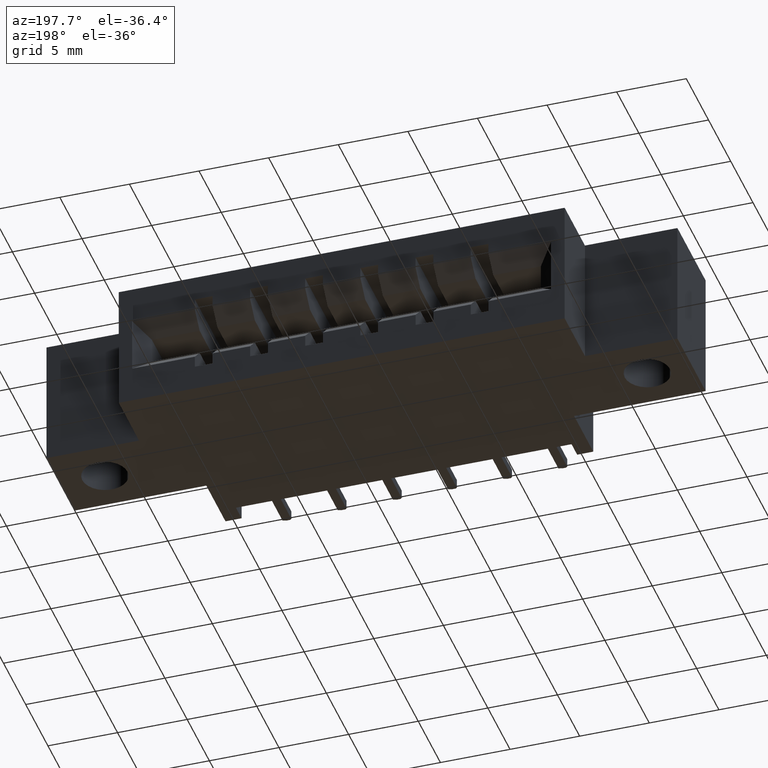
[diagram: clean part render]
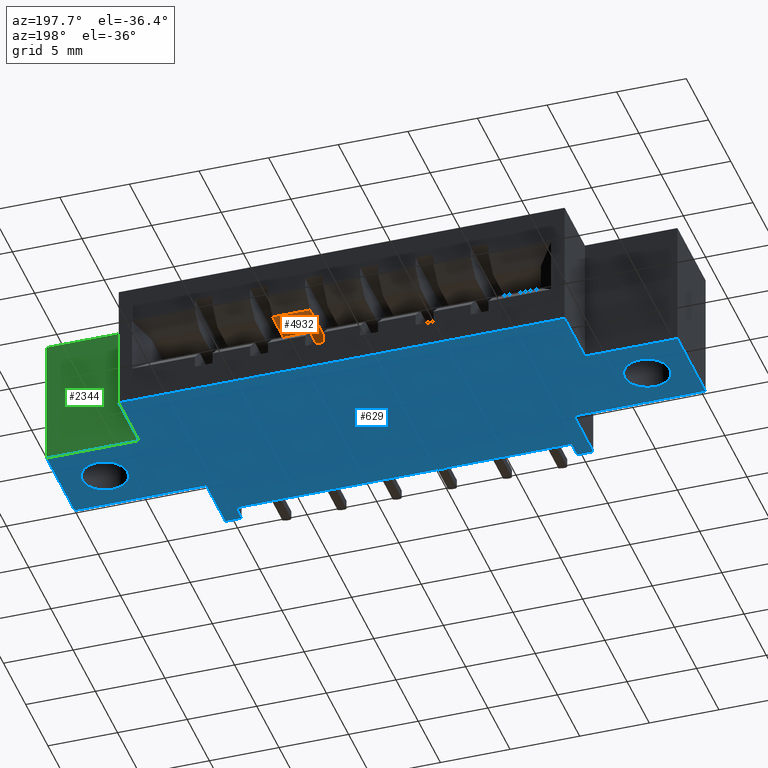
[diagram: same view with three faces highlighted in distinct colors, each labeled with its STEP entity id]
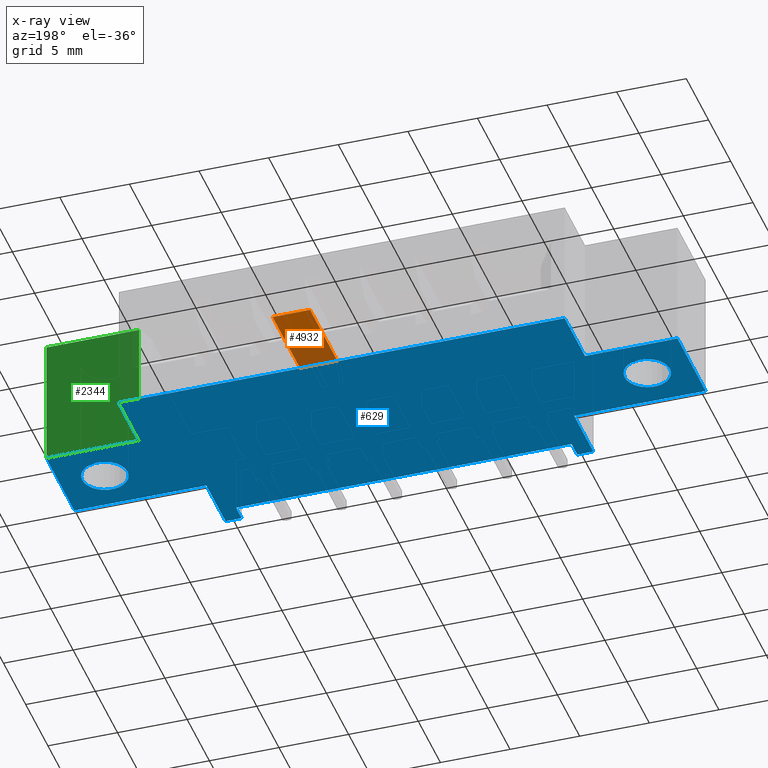
[diagram: x-ray of the same camera — body ghosted, the three highlighted faces saturated]
A machine part, auxiliary view with three faces highlighted in distinct colors.
The next image is the same camera in x-ray (body ghosted, the three faces saturated) — at least one of them is partly hidden behind the body in this view.
Their STEP definitions:

[orange] entity #4932 — the highlighted planar face has unit normal (-0, 0, 1).
#10 = EDGE_CURVE ( 'NONE', #1405, #4229, #4120, .T. ) ;
#189 = VERTEX_POINT ( 'NONE', #2765 ) ;
#1190 = ORIENTED_EDGE ( 'NONE', *, *, #4492, .T. ) ;
#1372 = PLANE ( 'NONE',  #5426 ) ;
#1405 = VERTEX_POINT ( 'NONE', #4775 ) ;
#1802 = DIRECTION ( 'NONE',  ( 1.000000000000000000, 0.0000000000000000000, 1.241749088029209900E-016 ) ) ;
#2114 = VECTOR ( 'NONE', #1802, 39.37007874015748100 ) ;
#2160 = CARTESIAN_POINT ( 'NONE',  ( 0.9949999999999998800, 0.5999999999999996400, -0.1480000000000002700 ) ) ;
#2161 = DIRECTION ( 'NONE',  ( -0.0000000000000000000, 1.000000000000000000, -8.801056680619408300E-016 ) ) ;
#2336 = VECTOR ( 'NONE', #2161, 39.37007874015748100 ) ;
#2396 = LINE ( 'NONE', #2685, #7357 ) ;
#2685 = CARTESIAN_POINT ( 'NONE',  ( 0.3419999999999999200, 0.5579999999999999400, -0.1480000000000003000 ) ) ;
#2743 = DIRECTION ( 'NONE',  ( 1.000000000000000000, 0.0000000000000000000, 1.241749088029209900E-016 ) ) ;
#2765 = CARTESIAN_POINT ( 'NONE',  ( 1.101000000000000000, 0.2119999999999998300, -0.1479999999999999400 ) ) ;
#2936 = VERTEX_POINT ( 'NONE', #3946 ) ;
#3007 = DIRECTION ( 'NONE',  ( -0.0000000000000000000, 1.000000000000000000, -8.801056680619408300E-016 ) ) ;
#3306 = CARTESIAN_POINT ( 'NONE',  ( 0.9949999999999998800, 0.5579999999999999400, -0.1480000000000002400 ) ) ;
#3946 = CARTESIAN_POINT ( 'NONE',  ( 1.101000000000000000, 0.5579999999999999400, -0.1480000000000002400 ) ) ;
#4120 = LINE ( 'NONE', #2160, #2336 ) ;
#4173 = FACE_OUTER_BOUND ( 'NONE', #7962, .T. ) ;
#4229 = VERTEX_POINT ( 'NONE', #3306 ) ;
#4492 = EDGE_CURVE ( 'NONE', #4229, #2936, #2396, .T. ) ;
#4549 = DIRECTION ( 'NONE',  ( 1.000000000000000000, 0.0000000000000000000, 1.241749088029209900E-016 ) ) ;
#4775 = CARTESIAN_POINT ( 'NONE',  ( 0.9949999999999998800, 0.2119999999999999400, -0.1480000000000002100 ) ) ;
#4932 = ADVANCED_FACE ( 'NONE', ( #4173 ), #1372, .F. ) ;
#5125 = CARTESIAN_POINT ( 'NONE',  ( 0.3419999999999999200, 0.2119999999999999400, -0.1480000000000003000 ) ) ;
#5402 = ORIENTED_EDGE ( 'NONE', *, *, #10, .T. ) ;
#5426 = AXIS2_PLACEMENT_3D ( 'NONE', #6151, #5999, #2743 ) ;
#5598 = ORIENTED_EDGE ( 'NONE', *, *, #8274, .F. ) ;
#5999 = DIRECTION ( 'NONE',  ( -1.241749088029209900E-016, 0.0000000000000000000, 1.000000000000000000 ) ) ;
#6076 = VECTOR ( 'NONE', #3007, 39.37007874015748100 ) ;
#6151 = CARTESIAN_POINT ( 'NONE',  ( 0.3419999999999999200, 0.2119999999999999400, -0.1480000000000003000 ) ) ;
#6618 = EDGE_CURVE ( 'NONE', #189, #2936, #7727, .T. ) ;
#7170 = CARTESIAN_POINT ( 'NONE',  ( 1.101000000000000000, 0.5999999999999996400, -0.1480000000000002700 ) ) ;
#7277 = LINE ( 'NONE', #5125, #2114 ) ;
#7357 = VECTOR ( 'NONE', #4549, 39.37007874015748100 ) ;
#7727 = LINE ( 'NONE', #7170, #6076 ) ;
#7734 = ORIENTED_EDGE ( 'NONE', *, *, #6618, .F. ) ;
#7962 = EDGE_LOOP ( 'NONE', ( #1190, #7734, #5598, #5402 ) ) ;
#8274 = EDGE_CURVE ( 'NONE', #1405, #189, #7277, .T. ) ;

[blue] entity #629 — the highlighted planar face has unit normal (0, 0, 1).
#7 = VECTOR ( 'NONE', #6171, 39.37007874015748100 ) ;
#30 = VECTOR ( 'NONE', #8387, 39.37007874015748100 ) ;
#34 = EDGE_CURVE ( 'NONE', #6651, #4865, #5876, .T. ) ;
#83 = VERTEX_POINT ( 'NONE', #343 ) ;
#94 = VERTEX_POINT ( 'NONE', #282 ) ;
#261 = EDGE_CURVE ( 'NONE', #3357, #2248, #4442, .T. ) ;
#273 = EDGE_CURVE ( 'NONE', #83, #5969, #4022, .T. ) ;
#282 = CARTESIAN_POINT ( 'NONE',  ( 0.4174999999999997000, 0.0000000000000000000, -0.3700000000000000000 ) ) ;
#343 = CARTESIAN_POINT ( 'NONE',  ( 0.1889999999999998100, 0.2949999999999999800, -0.3700000000000001600 ) ) ;
#389 = CARTESIAN_POINT ( 'NONE',  ( 1.659000000000000000, 0.2950000000000001500, -0.3700000000000001600 ) ) ;
#392 = DIRECTION ( 'NONE',  ( 1.000000000000000000, 0.0000000000000000000, -0.0000000000000000000 ) ) ;
#484 = VERTEX_POINT ( 'NONE', #8064 ) ;
#496 = CARTESIAN_POINT ( 'NONE',  ( 1.723000000000000800, 0.2950000000000001500, -0.3700000000000001600 ) ) ;
#530 = DIRECTION ( 'NONE',  ( -1.000000000000000000, -0.0000000000000000000, -0.0000000000000000000 ) ) ;
#559 = LINE ( 'NONE', #925, #7316 ) ;
#575 = DIRECTION ( 'NONE',  ( 1.000000000000000000, 0.0000000000000000000, 0.0000000000000000000 ) ) ;
#629 = ADVANCED_FACE ( 'NONE', ( #1700, #3494, #1912 ), #3615, .F. ) ;
#647 = VECTOR ( 'NONE', #6656, 39.37007874015748100 ) ;
#696 = EDGE_CURVE ( 'NONE', #7901, #4925, #1280, .T. ) ;
#755 = ORIENTED_EDGE ( 'NONE', *, *, #7593, .F. ) ;
#768 = EDGE_CURVE ( 'NONE', #3357, #3532, #4013, .T. ) ;
#858 = VECTOR ( 'NONE', #4612, 39.37007874015748100 ) ;
#925 = CARTESIAN_POINT ( 'NONE',  ( 1.522500000000001100, 0.4199999999999999800, -0.3700000000000001600 ) ) ;
#966 = CARTESIAN_POINT ( 'NONE',  ( -1.365923996832131600E-015, 0.1699999999999999800, -0.3699999999999960500 ) ) ;
#1001 = CARTESIAN_POINT ( 'NONE',  ( 1.366499999999999800, 0.05000000000000000300, -0.3700000000000000000 ) ) ;
#1051 = VERTEX_POINT ( 'NONE', #966 ) ;
#1064 = CARTESIAN_POINT ( 'NONE',  ( 0.0000000000000000000, 0.4199999999999999800, -0.3700000000000000000 ) ) ;
#1086 = EDGE_CURVE ( 'NONE', #5883, #2248, #1903, .T. ) ;
#1125 = CARTESIAN_POINT ( 'NONE',  ( 0.0000000000000000000, 0.0000000000000000000, -0.3700000000000000000 ) ) ;
#1161 = ORIENTED_EDGE ( 'NONE', *, *, #273, .T. ) ;
#1168 = ORIENTED_EDGE ( 'NONE', *, *, #5406, .T. ) ;
#1226 = EDGE_CURVE ( 'NONE', #1632, #2581, #2216, .T. ) ;
#1244 = ORIENTED_EDGE ( 'NONE', *, *, #3929, .F. ) ;
#1280 = LINE ( 'NONE', #6353, #6327 ) ;
#1289 = VERTEX_POINT ( 'NONE', #5135 ) ;
#1359 = VECTOR ( 'NONE', #7548, 39.37007874015748100 ) ;
#1384 = EDGE_CURVE ( 'NONE', #3057, #4925, #2750, .T. ) ;
#1415 = ORIENTED_EDGE ( 'NONE', *, *, #3528, .F. ) ;
#1446 = VERTEX_POINT ( 'NONE', #4594 ) ;
#1447 = ORIENTED_EDGE ( 'NONE', *, *, #7919, .T. ) ;
#1457 = ORIENTED_EDGE ( 'NONE', *, *, #1226, .T. ) ;
#1568 = VERTEX_POINT ( 'NONE', #1862 ) ;
#1623 = ORIENTED_EDGE ( 'NONE', *, *, #696, .T. ) ;
#1632 = VERTEX_POINT ( 'NONE', #496 ) ;
#1670 = LINE ( 'NONE', #5347, #7 ) ;
#1691 = ORIENTED_EDGE ( 'NONE', *, *, #3037, .F. ) ;
#1700 = FACE_BOUND ( 'NONE', #4596, .T. ) ;
#1713 = CARTESIAN_POINT ( 'NONE',  ( -1.365923996832131600E-015, 0.1699999999999999800, -0.3699999999999960500 ) ) ;
#1755 = DIRECTION ( 'NONE',  ( 1.000000000000000000, -0.0000000000000000000, -0.0000000000000000000 ) ) ;
#1793 = AXIS2_PLACEMENT_3D ( 'NONE', #7808, #7815, #7886 ) ;
#1795 = ORIENTED_EDGE ( 'NONE', *, *, #2641, .T. ) ;
#1851 = DIRECTION ( 'NONE',  ( 1.000000000000000000, 0.0000000000000000000, -4.589798376452054700E-015 ) ) ;
#1862 = CARTESIAN_POINT ( 'NONE',  ( 1.412000000000000100, 0.0000000000000000000, -0.3700000000000000000 ) ) ;
#1903 = LINE ( 'NONE', #5259, #5036 ) ;
#1912 = FACE_OUTER_BOUND ( 'NONE', #2343, .T. ) ;
#2072 = DIRECTION ( 'NONE',  ( -1.000000000000000000, -0.0000000000000000000, -0.0000000000000000000 ) ) ;
#2216 = CIRCLE ( 'NONE', #1793, 0.06400000000000073700 ) ;
#2230 = CARTESIAN_POINT ( 'NONE',  ( 0.4174999999999997000, 0.05000000000000000300, -0.3700000000000000000 ) ) ;
#2248 = VERTEX_POINT ( 'NONE', #2640 ) ;
#2263 = AXIS2_PLACEMENT_3D ( 'NONE', #2522, #2408, #2398 ) ;
#2271 = DIRECTION ( 'NONE',  ( -0.0000000000000000000, -1.000000000000000000, -0.0000000000000000000 ) ) ;
#2291 = EDGE_CURVE ( 'NONE', #7901, #1446, #7092, .T. ) ;
#2343 = EDGE_LOOP ( 'NONE', ( #1447, #1244, #1691, #755, #3100, #7025, #2572, #4877, #3226, #1623, #5484, #6563, #2692, #1415, #2466, #1795 ) ) ;
#2397 = AXIS2_PLACEMENT_3D ( 'NONE', #389, #3368, #5591 ) ;
#2398 = DIRECTION ( 'NONE',  ( 1.000000000000000000, 0.0000000000000000000, 0.0000000000000000000 ) ) ;
#2408 = DIRECTION ( 'NONE',  ( 0.0000000000000000000, 0.0000000000000000000, 1.000000000000000000 ) ) ;
#2463 = CIRCLE ( 'NONE', #2263, 0.06400000000000000100 ) ;
#2466 = ORIENTED_EDGE ( 'NONE', *, *, #34, .F. ) ;
#2481 = VERTEX_POINT ( 'NONE', #7894 ) ;
#2522 = CARTESIAN_POINT ( 'NONE',  ( 0.1249999999999998100, 0.2949999999999999800, -0.3700000000000001600 ) ) ;
#2572 = ORIENTED_EDGE ( 'NONE', *, *, #1086, .F. ) ;
#2581 = VERTEX_POINT ( 'NONE', #6996 ) ;
#2639 = CARTESIAN_POINT ( 'NONE',  ( 1.784000000000000500, 0.4199999999999999800, -0.3700000000000000000 ) ) ;
#2640 = CARTESIAN_POINT ( 'NONE',  ( 0.2615000000000000700, 0.5999999999999999800, -0.3700000000000000000 ) ) ;
#2641 = EDGE_CURVE ( 'NONE', #6651, #94, #6213, .T. ) ;
#2688 = DIRECTION ( 'NONE',  ( 0.0000000000000000000, 0.0000000000000000000, 1.000000000000000000 ) ) ;
#2692 = ORIENTED_EDGE ( 'NONE', *, *, #3815, .T. ) ;
#2741 = LINE ( 'NONE', #3597, #7480 ) ;
#2750 = LINE ( 'NONE', #7977, #4725 ) ;
#2774 = DIRECTION ( 'NONE',  ( -0.0000000000000000000, -1.000000000000000000, -0.0000000000000000000 ) ) ;
#3037 = EDGE_CURVE ( 'NONE', #1051, #1289, #5038, .T. ) ;
#3047 = AXIS2_PLACEMENT_3D ( 'NONE', #6412, #2688, #392 ) ;
#3057 = VERTEX_POINT ( 'NONE', #6002 ) ;
#3100 = ORIENTED_EDGE ( 'NONE', *, *, #768, .F. ) ;
#3226 = ORIENTED_EDGE ( 'NONE', *, *, #2291, .F. ) ;
#3249 = CARTESIAN_POINT ( 'NONE',  ( 0.4174999999999997000, 0.05000000000000000300, -0.3700000000000000000 ) ) ;
#3313 = CARTESIAN_POINT ( 'NONE',  ( 1.412000000000000100, 0.1699999999999999800, -0.3700000000000000000 ) ) ;
#3357 = VERTEX_POINT ( 'NONE', #4309 ) ;
#3368 = DIRECTION ( 'NONE',  ( 0.0000000000000000000, 0.0000000000000000000, 1.000000000000000000 ) ) ;
#3471 = CARTESIAN_POINT ( 'NONE',  ( 1.366499999999999800, 0.05000000000000000300, -0.3700000000000000000 ) ) ;
#3487 = VECTOR ( 'NONE', #1851, 39.37007874015748100 ) ;
#3494 = FACE_BOUND ( 'NONE', #7714, .T. ) ;
#3528 = EDGE_CURVE ( 'NONE', #4865, #2481, #4622, .T. ) ;
#3532 = VERTEX_POINT ( 'NONE', #7526 ) ;
#3597 = CARTESIAN_POINT ( 'NONE',  ( 0.0000000000000000000, 0.0000000000000000000, -0.3700000000000000000 ) ) ;
#3615 = PLANE ( 'NONE',  #3047 ) ;
#3815 = EDGE_CURVE ( 'NONE', #1568, #2481, #2741, .T. ) ;
#3871 = ORIENTED_EDGE ( 'NONE', *, *, #6871, .T. ) ;
#3924 = VECTOR ( 'NONE', #575, 39.37007874015748100 ) ;
#3929 = EDGE_CURVE ( 'NONE', #1289, #484, #1670, .T. ) ;
#4013 = LINE ( 'NONE', #1064, #647 ) ;
#4022 = CIRCLE ( 'NONE', #8477, 0.06400000000000000100 ) ;
#4105 = DIRECTION ( 'NONE',  ( -0.0000000000000000000, -1.000000000000000000, -0.0000000000000000000 ) ) ;
#4113 = DIRECTION ( 'NONE',  ( -0.0000000000000000000, 1.000000000000000000, -0.0000000000000000000 ) ) ;
#4268 = LINE ( 'NONE', #3313, #7832 ) ;
#4309 = CARTESIAN_POINT ( 'NONE',  ( 0.2615000000000001200, 0.4199999999999999800, -0.3700000000000000000 ) ) ;
#4314 = CARTESIAN_POINT ( 'NONE',  ( 0.2615000000000000700, 0.4199999999999999800, -0.3700000000000000000 ) ) ;
#4442 = LINE ( 'NONE', #4314, #858 ) ;
#4499 = CARTESIAN_POINT ( 'NONE',  ( 0.0000000000000000000, 0.5999999999999999800, -0.3700000000000000000 ) ) ;
#4594 = CARTESIAN_POINT ( 'NONE',  ( 1.522500000000001100, 0.4199999999999999800, -0.3700000000000001600 ) ) ;
#4596 = EDGE_LOOP ( 'NONE', ( #1457, #1168 ) ) ;
#4612 = DIRECTION ( 'NONE',  ( -0.0000000000000000000, 1.000000000000000000, -0.0000000000000000000 ) ) ;
#4622 = LINE ( 'NONE', #1001, #6309 ) ;
#4725 = VECTOR ( 'NONE', #1755, 39.37007874015748100 ) ;
#4865 = VERTEX_POINT ( 'NONE', #3471 ) ;
#4877 = ORIENTED_EDGE ( 'NONE', *, *, #6668, .F. ) ;
#4925 = VERTEX_POINT ( 'NONE', #8485 ) ;
#5036 = VECTOR ( 'NONE', #530, 39.37007874015748100 ) ;
#5038 = LINE ( 'NONE', #1713, #3487 ) ;
#5053 = LINE ( 'NONE', #4499, #8169 ) ;
#5106 = DIRECTION ( 'NONE',  ( 1.000000000000000000, 0.0000000000000000000, 0.0000000000000000000 ) ) ;
#5135 = CARTESIAN_POINT ( 'NONE',  ( 0.3719999999999986700, 0.1699999999999999800, -0.3699999999999977800 ) ) ;
#5259 = CARTESIAN_POINT ( 'NONE',  ( 0.0000000000000000000, 0.5999999999999999800, -0.3700000000000000000 ) ) ;
#5261 = VECTOR ( 'NONE', #5896, 39.37007874015748100 ) ;
#5347 = CARTESIAN_POINT ( 'NONE',  ( 0.3719999999999986700, 0.1699999999999999800, -0.3699999999999977800 ) ) ;
#5406 = EDGE_CURVE ( 'NONE', #2581, #1632, #7150, .T. ) ;
#5484 = ORIENTED_EDGE ( 'NONE', *, *, #1384, .F. ) ;
#5591 = DIRECTION ( 'NONE',  ( -1.000000000000000000, 0.0000000000000000000, 0.0000000000000000000 ) ) ;
#5634 = DIRECTION ( 'NONE',  ( 0.0000000000000000000, 0.0000000000000000000, 1.000000000000000000 ) ) ;
#5851 = CARTESIAN_POINT ( 'NONE',  ( 0.1249999999999998100, 0.2949999999999999800, -0.3700000000000001600 ) ) ;
#5876 = LINE ( 'NONE', #2230, #3924 ) ;
#5883 = VERTEX_POINT ( 'NONE', #6857 ) ;
#5896 = DIRECTION ( 'NONE',  ( -1.000000000000000000, -0.0000000000000000000, -0.0000000000000000000 ) ) ;
#5969 = VERTEX_POINT ( 'NONE', #6729 ) ;
#6002 = CARTESIAN_POINT ( 'NONE',  ( 1.412000000000000100, 0.1699999999999999800, -0.3700000000000000000 ) ) ;
#6006 = EDGE_CURVE ( 'NONE', #3057, #1568, #4268, .T. ) ;
#6171 = DIRECTION ( 'NONE',  ( -0.0000000000000000000, -1.000000000000000000, -0.0000000000000000000 ) ) ;
#6213 = LINE ( 'NONE', #7511, #1359 ) ;
#6309 = VECTOR ( 'NONE', #2774, 39.37007874015748100 ) ;
#6327 = VECTOR ( 'NONE', #7133, 39.37007874015748100 ) ;
#6353 = CARTESIAN_POINT ( 'NONE',  ( 1.784000000000000500, 0.5999999999999999800, -0.3700000000000000000 ) ) ;
#6412 = CARTESIAN_POINT ( 'NONE',  ( 0.0000000000000000000, 0.5999999999999999800, -0.3700000000000000000 ) ) ;
#6563 = ORIENTED_EDGE ( 'NONE', *, *, #6006, .T. ) ;
#6651 = VERTEX_POINT ( 'NONE', #3249 ) ;
#6656 = DIRECTION ( 'NONE',  ( -1.000000000000000000, -0.0000000000000000000, -0.0000000000000000000 ) ) ;
#6668 = EDGE_CURVE ( 'NONE', #1446, #5883, #559, .T. ) ;
#6729 = CARTESIAN_POINT ( 'NONE',  ( 0.06099999999999979700, 0.2949999999999999800, -0.3700000000000001600 ) ) ;
#6857 = CARTESIAN_POINT ( 'NONE',  ( 1.522500000000001100, 0.5999999999999999800, -0.3700000000000001600 ) ) ;
#6871 = EDGE_CURVE ( 'NONE', #5969, #83, #2463, .T. ) ;
#6903 = LINE ( 'NONE', #1125, #5261 ) ;
#6996 = CARTESIAN_POINT ( 'NONE',  ( 1.594999999999999300, 0.2950000000000001500, -0.3700000000000001600 ) ) ;
#7025 = ORIENTED_EDGE ( 'NONE', *, *, #261, .T. ) ;
#7092 = LINE ( 'NONE', #2639, #30 ) ;
#7133 = DIRECTION ( 'NONE',  ( -0.0000000000000000000, -1.000000000000000000, -0.0000000000000000000 ) ) ;
#7150 = CIRCLE ( 'NONE', #2397, 0.06400000000000073700 ) ;
#7316 = VECTOR ( 'NONE', #4113, 39.37007874015748100 ) ;
#7480 = VECTOR ( 'NONE', #2072, 39.37007874015748100 ) ;
#7511 = CARTESIAN_POINT ( 'NONE',  ( 0.4174999999999997000, 0.05000000000000000300, -0.3700000000000000000 ) ) ;
#7526 = CARTESIAN_POINT ( 'NONE',  ( 0.0000000000000000000, 0.4199999999999999800, -0.3700000000000000000 ) ) ;
#7548 = DIRECTION ( 'NONE',  ( -0.0000000000000000000, -1.000000000000000000, -0.0000000000000000000 ) ) ;
#7593 = EDGE_CURVE ( 'NONE', #3532, #1051, #5053, .T. ) ;
#7714 = EDGE_LOOP ( 'NONE', ( #1161, #3871 ) ) ;
#7808 = CARTESIAN_POINT ( 'NONE',  ( 1.659000000000000000, 0.2950000000000001500, -0.3700000000000001600 ) ) ;
#7815 = DIRECTION ( 'NONE',  ( 0.0000000000000000000, 0.0000000000000000000, 1.000000000000000000 ) ) ;
#7832 = VECTOR ( 'NONE', #4105, 39.37007874015748100 ) ;
#7834 = CARTESIAN_POINT ( 'NONE',  ( 1.784000000000000500, 0.4200000000000000400, -0.3700000000000000000 ) ) ;
#7886 = DIRECTION ( 'NONE',  ( -1.000000000000000000, 0.0000000000000000000, 0.0000000000000000000 ) ) ;
#7894 = CARTESIAN_POINT ( 'NONE',  ( 1.366499999999999800, 0.0000000000000000000, -0.3700000000000000000 ) ) ;
#7901 = VERTEX_POINT ( 'NONE', #7834 ) ;
#7919 = EDGE_CURVE ( 'NONE', #94, #484, #6903, .T. ) ;
#7977 = CARTESIAN_POINT ( 'NONE',  ( 1.784000000000000300, 0.1699999999999999800, -0.3700000000000000000 ) ) ;
#8064 = CARTESIAN_POINT ( 'NONE',  ( 0.3719999999999993300, 0.0000000000000000000, -0.3700000000000000000 ) ) ;
#8169 = VECTOR ( 'NONE', #2271, 39.37007874015748100 ) ;
#8387 = DIRECTION ( 'NONE',  ( -1.000000000000000000, 0.0000000000000000000, -5.223418725935506000E-016 ) ) ;
#8477 = AXIS2_PLACEMENT_3D ( 'NONE', #5851, #5634, #5106 ) ;
#8485 = CARTESIAN_POINT ( 'NONE',  ( 1.784000000000000300, 0.1699999999999999800, -0.3700000000000000000 ) ) ;

[green] entity #2344 — the highlighted planar face has unit normal (0, 1, 0).
#30 = VECTOR ( 'NONE', #8387, 39.37007874015748100 ) ;
#965 = DIRECTION ( 'NONE',  ( 0.0000000000000000000, 0.0000000000000000000, 1.000000000000000000 ) ) ;
#1174 = VERTEX_POINT ( 'NONE', #7412 ) ;
#1446 = VERTEX_POINT ( 'NONE', #4594 ) ;
#2291 = EDGE_CURVE ( 'NONE', #7901, #1446, #7092, .T. ) ;
#2344 = ADVANCED_FACE ( 'NONE', ( #8149 ), #5477, .T. ) ;
#2560 = VECTOR ( 'NONE', #7622, 39.37007874015748100 ) ;
#2639 = CARTESIAN_POINT ( 'NONE',  ( 1.784000000000000500, 0.4199999999999999800, -0.3700000000000000000 ) ) ;
#2716 = DIRECTION ( 'NONE',  ( -0.0000000000000000000, -0.0000000000000000000, -1.000000000000000000 ) ) ;
#2825 = CARTESIAN_POINT ( 'NONE',  ( 1.784000000000000500, 0.4199999999999999800, -0.3700000000000000000 ) ) ;
#2984 = LINE ( 'NONE', #8324, #2560 ) ;
#3174 = LINE ( 'NONE', #5632, #6419 ) ;
#3253 = LINE ( 'NONE', #2825, #8116 ) ;
#3281 = EDGE_CURVE ( 'NONE', #1446, #1174, #3174, .T. ) ;
#3745 = EDGE_LOOP ( 'NONE', ( #3925, #5810, #6833, #4069 ) ) ;
#3872 = DIRECTION ( 'NONE',  ( 0.0000000000000000000, 1.000000000000000000, -0.0000000000000000000 ) ) ;
#3925 = ORIENTED_EDGE ( 'NONE', *, *, #2291, .T. ) ;
#4069 = ORIENTED_EDGE ( 'NONE', *, *, #4818, .T. ) ;
#4594 = CARTESIAN_POINT ( 'NONE',  ( 1.522500000000001100, 0.4199999999999999800, -0.3700000000000001600 ) ) ;
#4818 = EDGE_CURVE ( 'NONE', #6346, #7901, #3253, .T. ) ;
#5477 = PLANE ( 'NONE',  #6231 ) ;
#5632 = CARTESIAN_POINT ( 'NONE',  ( 1.522500000000001100, 0.4199999999999999800, -0.3700000000000001600 ) ) ;
#5810 = ORIENTED_EDGE ( 'NONE', *, *, #3281, .T. ) ;
#6066 = CARTESIAN_POINT ( 'NONE',  ( 1.522500000000001100, 0.4199999999999999800, -0.3700000000000001600 ) ) ;
#6231 = AXIS2_PLACEMENT_3D ( 'NONE', #6066, #3872, #8379 ) ;
#6346 = VERTEX_POINT ( 'NONE', #7708 ) ;
#6419 = VECTOR ( 'NONE', #965, 39.37007874015748100 ) ;
#6833 = ORIENTED_EDGE ( 'NONE', *, *, #7472, .T. ) ;
#7092 = LINE ( 'NONE', #2639, #30 ) ;
#7412 = CARTESIAN_POINT ( 'NONE',  ( 1.522500000000001100, 0.4199999999999999800, -1.704402182713329600E-016 ) ) ;
#7472 = EDGE_CURVE ( 'NONE', #1174, #6346, #2984, .T. ) ;
#7622 = DIRECTION ( 'NONE',  ( 1.000000000000000000, -0.0000000000000000000, 6.517790373664756200E-016 ) ) ;
#7708 = CARTESIAN_POINT ( 'NONE',  ( 1.784000000000000500, 0.4199999999999999800, 0.0000000000000000000 ) ) ;
#7834 = CARTESIAN_POINT ( 'NONE',  ( 1.784000000000000500, 0.4200000000000000400, -0.3700000000000000000 ) ) ;
#7901 = VERTEX_POINT ( 'NONE', #7834 ) ;
#8116 = VECTOR ( 'NONE', #2716, 39.37007874015748100 ) ;
#8149 = FACE_OUTER_BOUND ( 'NONE', #3745, .T. ) ;
#8324 = CARTESIAN_POINT ( 'NONE',  ( 1.784000000000000500, 0.4199999999999999800, 0.0000000000000000000 ) ) ;
#8379 = DIRECTION ( 'NONE',  ( 0.0000000000000000000, 0.0000000000000000000, 1.000000000000000000 ) ) ;
#8387 = DIRECTION ( 'NONE',  ( -1.000000000000000000, 0.0000000000000000000, -5.223418725935506000E-016 ) ) ;